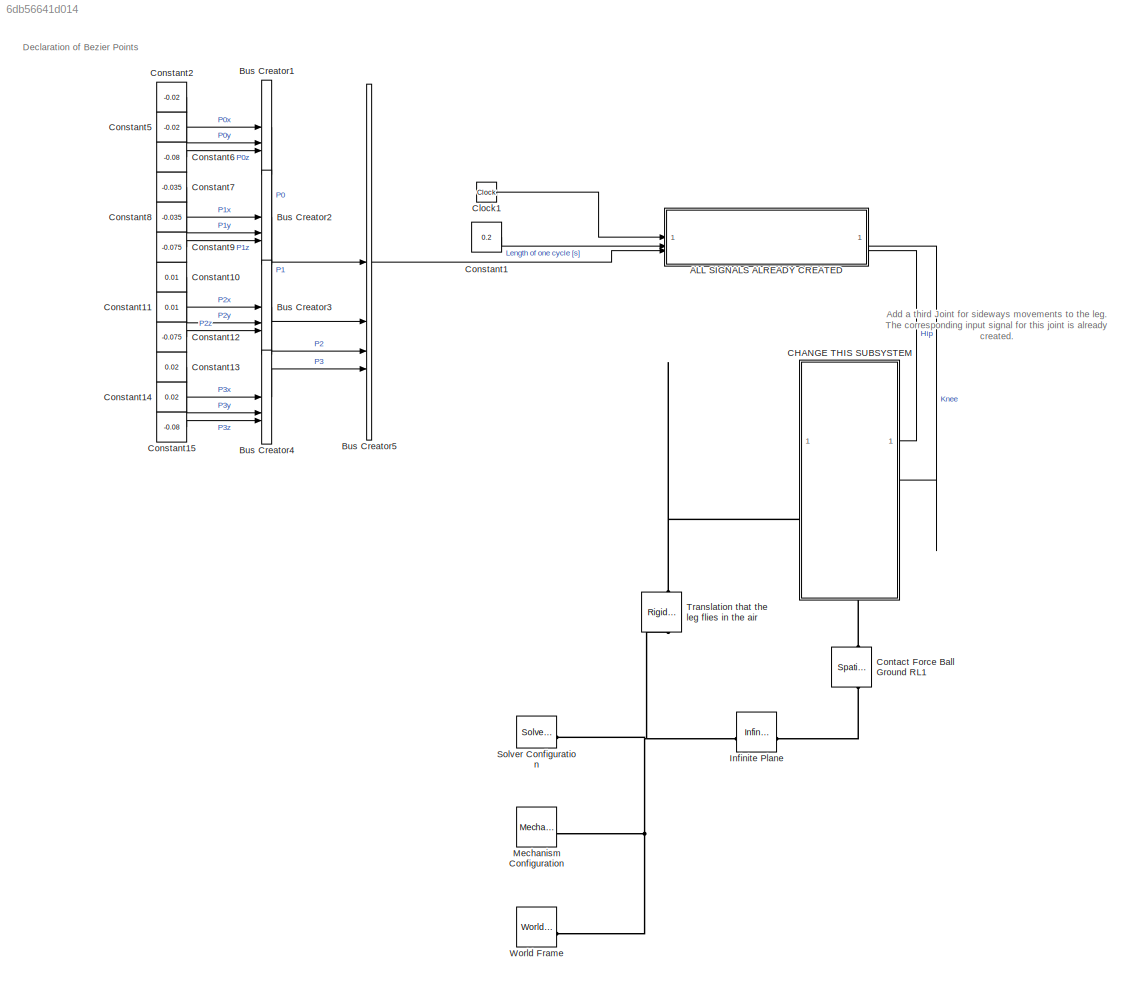
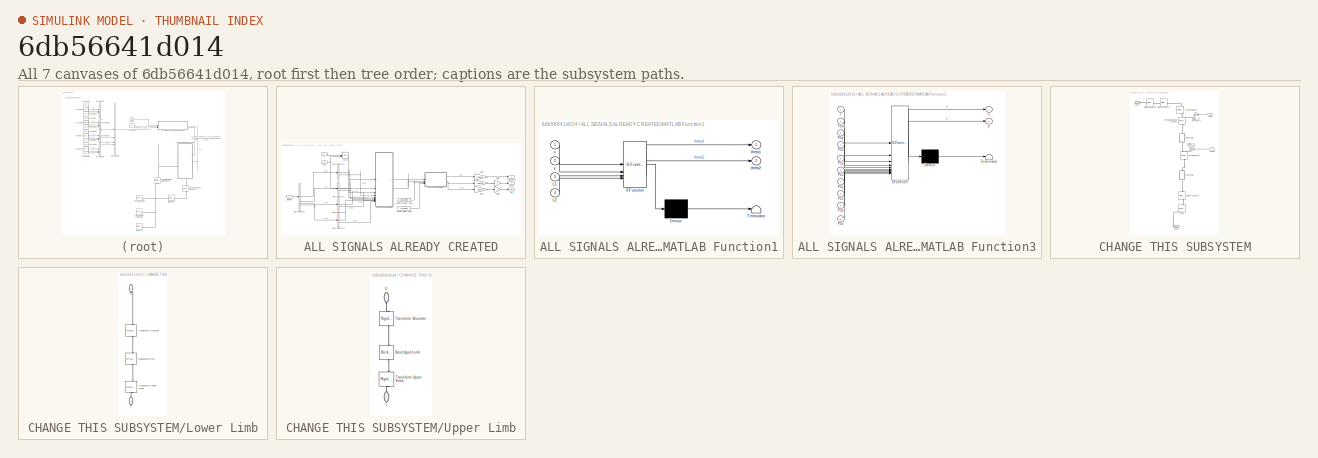
[diagram: thumbnail index - all 7 canvases of the model, root first then tree order]
MODEL slx_6db56641d014
KIND model
CONFIG AbsTol = 1e-3
CONFIG EnableMultiTasking = on
CONFIG FixedStep = auto
CONFIG MaxStep = auto
CONFIG MinStep = auto
CONFIG RelTol = 1e-3
CONFIG SampleTimeConstraint = Unconstrained
CONFIG SolverName = ode23t
CONFIG StartTime = 0.0
CONFIG StopTime = 5
WORKSPACE source: mxarray member
WORKSPACE A = 0.4
WORKSPACE Critical_Velocity = 0.01
WORKSPACE Damping_Factor = 1000
WORKSPACE Dynamic_Friction = 0.5
WORKSPACE Heigth_brick: Simulink.Parameter (value not decoded)
WORKSPACE Heigth_ramp: Simulink.Parameter (value not decoded)
WORKSPACE Length_brick: Simulink.Parameter (value not decoded)
WORKSPACE Length_ramp: Simulink.Parameter (value not decoded)
WORKSPACE Length_torso: Simulink.Parameter (value not decoded)
WORKSPACE Lower_limbs: Simulink.Parameter (value not decoded)
WORKSPACE Static_Friction = 0.7
WORKSPACE Stiffnesscoefficient = 10000
WORKSPACE Transition_Region_Width = 0.02
WORKSPACE Upper_limbs: Simulink.Parameter (value not decoded)
WORKSPACE Width_brick: Simulink.Parameter (value not decoded)
WORKSPACE Width_ramp: Simulink.Parameter (value not decoded)
WORKSPACE Width_torso: Simulink.Parameter (value not decoded)
WORKSPACE f = 1.5
WORKSPACE max_Joint_change = 100
WORKSPACE r_foot: Simulink.Parameter (value not decoded)
WORKSPACE sampleTime: Simulink.Parameter (value not decoded)
WORKSPACE t_leg: Simulink.Parameter (value not decoded)
WORKSPACE theta: Simulink.Parameter (value not decoded)
WORKSPACE transferFunVal: Simulink.Parameter (value not decoded)
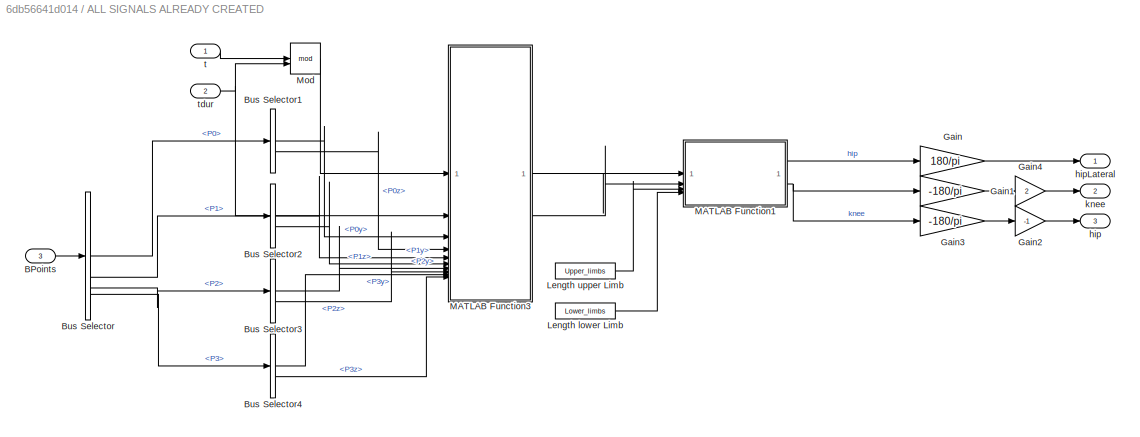
BLOCK [SubSystem] ALL SIGNALS ALREADY CREATED
BLOCK [Inport] ALL SIGNALS ALREADY CREATED/BPoints
  Port = 3
BLOCK [BusSelector] ALL SIGNALS ALREADY CREATED/Bus Selector
  OutputSignals = P0,P1,P2,P3
BLOCK [BusSelector] ALL SIGNALS ALREADY CREATED/Bus Selector1
  OutputSignals = P0y,P0z
BLOCK [BusSelector] ALL SIGNALS ALREADY CREATED/Bus Selector2
  OutputSignals = P1y,P1z
BLOCK [BusSelector] ALL SIGNALS ALREADY CREATED/Bus Selector3
  OutputSignals = P2y,P2z
BLOCK [BusSelector] ALL SIGNALS ALREADY CREATED/Bus Selector4
  OutputSignals = P3y,P3z
BLOCK [Gain] ALL SIGNALS ALREADY CREATED/Gain
  Gain = 180/pi
BLOCK [Gain] ALL SIGNALS ALREADY CREATED/Gain1
  Gain = -180/pi
BLOCK [Gain] ALL SIGNALS ALREADY CREATED/Gain2
  Gain = -1
BLOCK [Gain] ALL SIGNALS ALREADY CREATED/Gain3
  Gain = -180/pi
BLOCK [Gain] ALL SIGNALS ALREADY CREATED/Gain4
  Gain = 2
BLOCK [Constant] ALL SIGNALS ALREADY CREATED/Length lower Limb
  Value = Lower_limbs
BLOCK [Constant] ALL SIGNALS ALREADY CREATED/Length upper Limb
  Value = Upper_limbs
BLOCK [SubSystem] ALL SIGNALS ALREADY CREATED/MATLAB Function1
  ErrorFcn = Stateflow.Translate.translate
  PermitHierarchicalResolution = ExplicitOnly
  SFBlockType = MATLAB Function
  TreatAsAtomicUnit = on
BLOCK [Demux] ALL SIGNALS ALREADY CREATED/MATLAB Function1/ Demux 
  Outputs = 1
BLOCK [S-Function] ALL SIGNALS ALREADY CREATED/MATLAB Function1/ SFunction 
  EnableBusSupport = on
  FunctionName = sf_sfun
  PortCounts = [4 3]
  SFcnIsStateOwnerBlock = off
  SFunctionDeploymentMode = off
  Tag = Stateflow S-Function 20
BLOCK [Terminator] ALL SIGNALS ALREADY CREATED/MATLAB Function1/ Terminator 
BLOCK [Inport] ALL SIGNALS ALREADY CREATED/MATLAB Function1/L1
  Port = 3
BLOCK [Inport] ALL SIGNALS ALREADY CREATED/MATLAB Function1/L2
  Port = 4
BLOCK [Outport] ALL SIGNALS ALREADY CREATED/MATLAB Function1/theta1
BLOCK [Outport] ALL SIGNALS ALREADY CREATED/MATLAB Function1/theta2
  Port = 2
BLOCK [Inport] ALL SIGNALS ALREADY CREATED/MATLAB Function1/x
BLOCK [Inport] ALL SIGNALS ALREADY CREATED/MATLAB Function1/y
  Port = 2
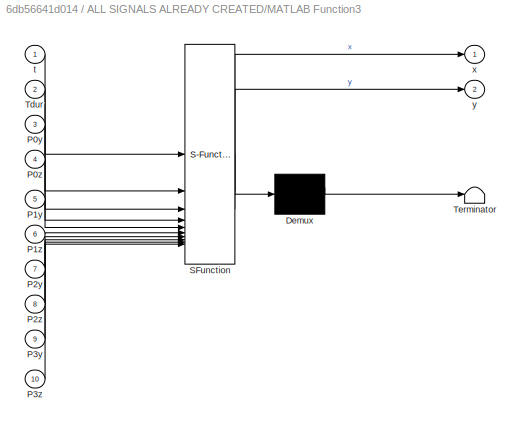
BLOCK [SubSystem] ALL SIGNALS ALREADY CREATED/MATLAB Function3
  ErrorFcn = Stateflow.Translate.translate
  PermitHierarchicalResolution = ExplicitOnly
  SFBlockType = MATLAB Function
  TreatAsAtomicUnit = on
BLOCK [Demux] ALL SIGNALS ALREADY CREATED/MATLAB Function3/ Demux 
  Outputs = 1
BLOCK [S-Function] ALL SIGNALS ALREADY CREATED/MATLAB Function3/ SFunction 
  EnableBusSupport = on
  FunctionName = sf_sfun
  PortCounts = [10 3]
  SFcnIsStateOwnerBlock = off
  SFunctionDeploymentMode = off
  Tag = Stateflow S-Function 22
BLOCK [Terminator] ALL SIGNALS ALREADY CREATED/MATLAB Function3/ Terminator 
BLOCK [Inport] ALL SIGNALS ALREADY CREATED/MATLAB Function3/P0y
  Port = 3
BLOCK [Inport] ALL SIGNALS ALREADY CREATED/MATLAB Function3/P0z
  Port = 4
BLOCK [Inport] ALL SIGNALS ALREADY CREATED/MATLAB Function3/P1y
  Port = 5
BLOCK [Inport] ALL SIGNALS ALREADY CREATED/MATLAB Function3/P1z
  Port = 6
BLOCK [Inport] ALL SIGNALS ALREADY CREATED/MATLAB Function3/P2y
  Port = 7
BLOCK [Inport] ALL SIGNALS ALREADY CREATED/MATLAB Function3/P2z
  Port = 8
BLOCK [Inport] ALL SIGNALS ALREADY CREATED/MATLAB Function3/P3y
  Port = 9
BLOCK [Inport] ALL SIGNALS ALREADY CREATED/MATLAB Function3/P3z
  Port = 10
BLOCK [Inport] ALL SIGNALS ALREADY CREATED/MATLAB Function3/Tdur
  Port = 2
BLOCK [Inport] ALL SIGNALS ALREADY CREATED/MATLAB Function3/t
BLOCK [Outport] ALL SIGNALS ALREADY CREATED/MATLAB Function3/x
BLOCK [Outport] ALL SIGNALS ALREADY CREATED/MATLAB Function3/y
  Port = 2
BLOCK [Math] ALL SIGNALS ALREADY CREATED/Mod
  Operator = mod
BLOCK [Outport] ALL SIGNALS ALREADY CREATED/hip
  Port = 3
BLOCK [Outport] ALL SIGNALS ALREADY CREATED/hipLateral
BLOCK [Outport] ALL SIGNALS ALREADY CREATED/knee
  Port = 2
BLOCK [Inport] ALL SIGNALS ALREADY CREATED/t
BLOCK [Inport] ALL SIGNALS ALREADY CREATED/tdur
  Port = 2
BLOCK [BusCreator] Bus Creator1
  DisplayOption = bar
  InheritFromInputs = on
  Inputs = 3
BLOCK [BusCreator] Bus Creator2
  DisplayOption = bar
  InheritFromInputs = on
  Inputs = 3
BLOCK [BusCreator] Bus Creator3
  DisplayOption = bar
  InheritFromInputs = on
  Inputs = 3
BLOCK [BusCreator] Bus Creator4
  DisplayOption = bar
  InheritFromInputs = on
  Inputs = 3
BLOCK [BusCreator] Bus Creator5
  DisplayOption = bar
  InheritFromInputs = on
  Inputs = 4
BLOCK [SubSystem] CHANGE THIS SUBSYSTEM
  PortSchema = {"entries":[{"content":{"sides":[{"content":{},"type":"ConnectorPlacement.EquallySpacedRectSide","uuid":"4058ee2b-9772-4aa9-ad2c-dc188ae6aecd"},{"content":{"connectorIds":["In1","In2"],"side":"RIGHT"},"type":"ConnectorPlacement.EquallySpacedRectSide","uuid":"c8f5ac60-63ea-4dfe-ad35-3ef8c1bdb1d6"},{"content":{"connectorIds":["LConn1"],"side":"TOP"},"type":"ConnectorPlacement.EquallySpacedRectSide",...<+383ch>
BLOCK [Inport] CHANGE THIS SUBSYSTEM/<Hip>
  NameLocation = top
BLOCK [Inport] CHANGE THIS SUBSYSTEM/<Knee>
  NameLocation = top
  Port = 2
BLOCK [PMIOPort] CHANGE THIS SUBSYSTEM/Conn1
  Side = Left
BLOCK [PMIOPort] CHANGE THIS SUBSYSTEM/Conn2
  Port = 2
  Side = Right
BLOCK [Reference] CHANGE THIS SUBSYSTEM/Foot  REF=sm_lib/Body Elements/Spherical Solid
  NameLocation = right
  SourceBlock = sm_lib/Body Elements/Spherical Solid
  SourceType = Spherical Solid
BLOCK [SubSystem] CHANGE THIS SUBSYSTEM/Lower Limb
  NameLocation = left
BLOCK [Reference] CHANGE THIS SUBSYSTEM/Lower Limb/BaseLowerLimb  REF=sm_lib/Body Elements/Brick Solid
  NameLocation = left
  SourceBlock = sm_lib/Body Elements/Brick Solid
  SourceType = Brick Solid
BLOCK [PMIOPort] CHANGE THIS SUBSYSTEM/Lower Limb/L
  NameLocation = left
  Port = 2
  Side = Right
BLOCK [Reference] CHANGE THIS SUBSYSTEM/Lower Limb/Transform Shoulder  REF=sm_lib/Frames and
Transforms/Rigid
Transform
  NameLocation = left
  SourceBlock = sm_lib/Frames and\nTransforms/Rigid\nTransform
  SourceType = Rigid\nTransform
BLOCK [Reference] CHANGE THIS SUBSYSTEM/Lower Limb/Transform Upper Knee  REF=sm_lib/Frames and
Transforms/Rigid
Transform
  NameLocation = left
  SourceBlock = sm_lib/Frames and\nTransforms/Rigid\nTransform
  SourceType = Rigid\nTransform
BLOCK [PMIOPort] CHANGE THIS SUBSYSTEM/Lower Limb/U
  NameLocation = left
  Side = Left
BLOCK [Reference] CHANGE THIS SUBSYSTEM/Revolute Knee1  REF=sm_lib/Joints/Revolute Joint
  NameLocation = left
  SourceBlock = sm_lib/Joints/Revolute Joint
  SourceType = Revolute Joint
BLOCK [Reference] CHANGE THIS SUBSYSTEM/Revolute Shoulder Forward  REF=sm_lib/Joints/Revolute Joint
  NameLocation = left
  SourceBlock = sm_lib/Joints/Revolute Joint
  SourceType = Revolute Joint
BLOCK [Reference] CHANGE THIS SUBSYSTEM/Rigid Transform  REF=sm_lib/Frames and
Transforms/Rigid
Transform
  SourceBlock = sm_lib/Frames and\nTransforms/Rigid\nTransform
  SourceType = Rigid\nTransform
BLOCK [Reference] CHANGE THIS SUBSYSTEM/Rigid Transform1  REF=sm_lib/Frames and
Transforms/Rigid
Transform
  SourceBlock = sm_lib/Frames and\nTransforms/Rigid\nTransform
  SourceType = Rigid\nTransform
BLOCK [Reference] CHANGE THIS SUBSYSTEM/Rigid Transform4  REF=sm_lib/Frames and
Transforms/Rigid
Transform
  NameLocation = left
  SourceBlock = sm_lib/Frames and\nTransforms/Rigid\nTransform
  SourceType = Rigid\nTransform
BLOCK [Reference] CHANGE THIS SUBSYSTEM/Simulink-PS Converter  REF=nesl_utility/Simulink-PS
Converter
  NameLocation = top
  SourceBlock = nesl_utility/Simulink-PS\nConverter
  SourceType = Simulink-PS\nConverter
BLOCK [Reference] CHANGE THIS SUBSYSTEM/Simulink-PS Converter2  REF=nesl_utility/Simulink-PS
Converter
  NameLocation = top
  SourceBlock = nesl_utility/Simulink-PS\nConverter
  SourceType = Simulink-PS\nConverter
BLOCK [Reference] CHANGE THIS SUBSYSTEM/Transform Pivot1  REF=sm_lib/Frames and
Transforms/Rigid
Transform
  NameLocation = left
  SourceBlock = sm_lib/Frames and\nTransforms/Rigid\nTransform
  SourceType = Rigid\nTransform
BLOCK [SubSystem] CHANGE THIS SUBSYSTEM/Upper Limb
  NameLocation = left
BLOCK [Reference] CHANGE THIS SUBSYSTEM/Upper Limb/BaseUpperLimb  REF=sm_lib/Body Elements/Brick Solid
  NameLocation = left
  SourceBlock = sm_lib/Body Elements/Brick Solid
  SourceType = Brick Solid
BLOCK [PMIOPort] CHANGE THIS SUBSYSTEM/Upper Limb/L
  NameLocation = left
  Port = 2
  Side = Right
BLOCK [Reference] CHANGE THIS SUBSYSTEM/Upper Limb/Transform Shoulder  REF=sm_lib/Frames and
Transforms/Rigid
Transform
  NameLocation = left
  SourceBlock = sm_lib/Frames and\nTransforms/Rigid\nTransform
  SourceType = Rigid\nTransform
BLOCK [Reference] CHANGE THIS SUBSYSTEM/Upper Limb/Transform Upper Knee  REF=sm_lib/Frames and
Transforms/Rigid
Transform
  NameLocation = left
  SourceBlock = sm_lib/Frames and\nTransforms/Rigid\nTransform
  SourceType = Rigid\nTransform
BLOCK [PMIOPort] CHANGE THIS SUBSYSTEM/Upper Limb/U
  NameLocation = left
  Side = Left
BLOCK [Clock] Clock1
BLOCK [Constant] Constant1
  Value = 0.2
BLOCK [Constant] Constant10
  Value = 0.01
BLOCK [Constant] Constant11
  Value = 0.01
BLOCK [Constant] Constant12
  Value = -0.075
BLOCK [Constant] Constant13
  Value = 0.02
BLOCK [Constant] Constant14
  Value = 0.02
BLOCK [Constant] Constant15
  Value = -0.08
BLOCK [Constant] Constant2
  Value = -0.02
BLOCK [Constant] Constant5
  Value = -0.02
BLOCK [Constant] Constant6
  Value = -0.08
BLOCK [Constant] Constant7
  Value = -0.035
BLOCK [Constant] Constant8
  Value = -0.035
BLOCK [Constant] Constant9
  Value = -0.075
BLOCK [Reference] Contact Force Ball Ground RL1  REF=sm_lib/Forces and
Torques/Spatial
Contact Force
  NameLocation = left
  SourceBlock = sm_lib/Forces and\nTorques/Spatial\nContact Force
  SourceType = Spatial\nContact Force
BLOCK [Reference] Infinite Plane  REF=sm_lib/Curves and Surfaces/Infinite Plane
  SourceBlock = sm_lib/Curves and Surfaces/Infinite Plane
  SourceType = Infinite Plane
BLOCK [Reference] Mechanism Configuration  REF=sm_lib/Utilities/Mechanism
Configuration
  SourceBlock = sm_lib/Utilities/Mechanism\nConfiguration
  SourceType = Mechanism\nConfiguration
BLOCK [Reference] Solver Configuration  REF=nesl_utility/Solver
Configuration
  SourceBlock = nesl_utility/Solver\nConfiguration
  SourceType = Solver\nConfiguration
BLOCK [Reference] Translation that the leg flies in the air  REF=sm_lib/Frames and
Transforms/Rigid
Transform
  SourceBlock = sm_lib/Frames and\nTransforms/Rigid\nTransform
  SourceType = Rigid\nTransform
BLOCK [Reference] World Frame  REF=sm_lib/Frames and
Transforms/World Frame
  SourceBlock = sm_lib/Frames and\nTransforms/World Frame
  SourceType = World Frame
ANNOTATION (root): Add a third Joint for sideways movements to the leg. The corresponding input signal for this joint is already created.
ANNOTATION (root): Declaration of Bezier Points
LINE ALL SIGNALS ALREADY CREATED/BPoints:1 -> ALL SIGNALS ALREADY CREATED/Bus Selector:1
LINE ALL SIGNALS ALREADY CREATED/Bus Selector1:1 -> ALL SIGNALS ALREADY CREATED/MATLAB Function3:3
LINE ALL SIGNALS ALREADY CREATED/Bus Selector1:2 -> ALL SIGNALS ALREADY CREATED/MATLAB Function3:4
LINE ALL SIGNALS ALREADY CREATED/Bus Selector2:1 -> ALL SIGNALS ALREADY CREATED/MATLAB Function3:5
LINE ALL SIGNALS ALREADY CREATED/Bus Selector2:2 -> ALL SIGNALS ALREADY CREATED/MATLAB Function3:6
LINE ALL SIGNALS ALREADY CREATED/Bus Selector3:1 -> ALL SIGNALS ALREADY CREATED/MATLAB Function3:7
LINE ALL SIGNALS ALREADY CREATED/Bus Selector3:2 -> ALL SIGNALS ALREADY CREATED/MATLAB Function3:8
LINE ALL SIGNALS ALREADY CREATED/Bus Selector4:1 -> ALL SIGNALS ALREADY CREATED/MATLAB Function3:9
LINE ALL SIGNALS ALREADY CREATED/Bus Selector4:2 -> ALL SIGNALS ALREADY CREATED/MATLAB Function3:10
LINE ALL SIGNALS ALREADY CREATED/Bus Selector:1 -> ALL SIGNALS ALREADY CREATED/Bus Selector1:1
LINE ALL SIGNALS ALREADY CREATED/Bus Selector:2 -> ALL SIGNALS ALREADY CREATED/Bus Selector2:1
LINE ALL SIGNALS ALREADY CREATED/Bus Selector:3 -> ALL SIGNALS ALREADY CREATED/Bus Selector3:1
LINE ALL SIGNALS ALREADY CREATED/Bus Selector:4 -> ALL SIGNALS ALREADY CREATED/Bus Selector4:1
LINE ALL SIGNALS ALREADY CREATED/Gain1:1 -> ALL SIGNALS ALREADY CREATED/Gain4:1
LINE ALL SIGNALS ALREADY CREATED/Gain2:1 -> ALL SIGNALS ALREADY CREATED/hip:1
LINE ALL SIGNALS ALREADY CREATED/Gain3:1 -> ALL SIGNALS ALREADY CREATED/Gain2:1
LINE ALL SIGNALS ALREADY CREATED/Gain4:1 -> ALL SIGNALS ALREADY CREATED/knee:1
LINE ALL SIGNALS ALREADY CREATED/Gain:1 -> ALL SIGNALS ALREADY CREATED/hipLateral:1
LINE ALL SIGNALS ALREADY CREATED/Length lower Limb:1 -> ALL SIGNALS ALREADY CREATED/MATLAB Function1:4
LINE ALL SIGNALS ALREADY CREATED/Length upper Limb:1 -> ALL SIGNALS ALREADY CREATED/MATLAB Function1:3
LINE ALL SIGNALS ALREADY CREATED/MATLAB Function1:1 -> ALL SIGNALS ALREADY CREATED/Gain:1
NET ALL SIGNALS ALREADY CREATED/MATLAB Function1:2 -> ALL SIGNALS ALREADY CREATED/Gain1:1, ALL SIGNALS ALREADY CREATED/Gain3:1
LINE ALL SIGNALS ALREADY CREATED/MATLAB Function3:1 -> ALL SIGNALS ALREADY CREATED/MATLAB Function1:1
LINE ALL SIGNALS ALREADY CREATED/MATLAB Function3:2 -> ALL SIGNALS ALREADY CREATED/MATLAB Function1:2
LINE ALL SIGNALS ALREADY CREATED/Mod:1 -> ALL SIGNALS ALREADY CREATED/MATLAB Function3:1
LINE ALL SIGNALS ALREADY CREATED/t:1 -> ALL SIGNALS ALREADY CREATED/Mod:1
NET ALL SIGNALS ALREADY CREATED/tdur:1 -> ALL SIGNALS ALREADY CREATED/MATLAB Function3:2, ALL SIGNALS ALREADY CREATED/Mod:2
LINE ALL SIGNALS ALREADY CREATED:2 -> CHANGE THIS SUBSYSTEM:2
LINE ALL SIGNALS ALREADY CREATED:3 -> CHANGE THIS SUBSYSTEM:1
LINE Bus Creator1:1 -> Bus Creator5:1
LINE Bus Creator2:1 -> Bus Creator5:2
LINE Bus Creator3:1 -> Bus Creator5:3
LINE Bus Creator4:1 -> Bus Creator5:4
LINE Bus Creator5:1 -> ALL SIGNALS ALREADY CREATED:3
LINE CHANGE THIS SUBSYSTEM/<Hip>:1 -> CHANGE THIS SUBSYSTEM/Simulink-PS Converter2:1
LINE CHANGE THIS SUBSYSTEM/<Knee>:1 -> CHANGE THIS SUBSYSTEM/Simulink-PS Converter:1
LINE Clock1:1 -> ALL SIGNALS ALREADY CREATED:1
LINE Constant10:1 -> Bus Creator3:1
LINE Constant11:1 -> Bus Creator3:2
LINE Constant12:1 -> Bus Creator3:3
LINE Constant13:1 -> Bus Creator4:1
LINE Constant14:1 -> Bus Creator4:2
LINE Constant15:1 -> Bus Creator4:3
LINE Constant1:1 -> ALL SIGNALS ALREADY CREATED:2
LINE Constant2:1 -> Bus Creator1:1
LINE Constant5:1 -> Bus Creator1:2
LINE Constant6:1 -> Bus Creator1:3
LINE Constant7:1 -> Bus Creator2:1
LINE Constant8:1 -> Bus Creator2:2
LINE Constant9:1 -> Bus Creator2:3
PLINE CHANGE THIS SUBSYSTEM/Conn1:RConn1 -- CHANGE THIS SUBSYSTEM/Rigid Transform1:LConn1
PLINE CHANGE THIS SUBSYSTEM/Conn2:RConn1 -- CHANGE THIS SUBSYSTEM/Foot:LConn1
PLINE CHANGE THIS SUBSYSTEM/Foot:RConn1 -- CHANGE THIS SUBSYSTEM/Rigid Transform4:RConn1
PLINE CHANGE THIS SUBSYSTEM/Lower Limb/BaseLowerLimb:LConn1 -- CHANGE THIS SUBSYSTEM/Lower Limb/Transform Shoulder:LConn1
PLINE CHANGE THIS SUBSYSTEM/Lower Limb/BaseLowerLimb:RConn1 -- CHANGE THIS SUBSYSTEM/Lower Limb/Transform Upper Knee:LConn1
PLINE CHANGE THIS SUBSYSTEM/Lower Limb/L:RConn1 -- CHANGE THIS SUBSYSTEM/Lower Limb/Transform Upper Knee:RConn1
PLINE CHANGE THIS SUBSYSTEM/Lower Limb/Transform Shoulder:RConn1 -- CHANGE THIS SUBSYSTEM/Lower Limb/U:RConn1
PLINE CHANGE THIS SUBSYSTEM/Lower Limb:LConn1 -- CHANGE THIS SUBSYSTEM/Revolute Knee1:RConn1
PLINE CHANGE THIS SUBSYSTEM/Lower Limb:RConn1 -- CHANGE THIS SUBSYSTEM/Rigid Transform4:LConn1
PLINE CHANGE THIS SUBSYSTEM/Revolute Knee1:LConn1 -- CHANGE THIS SUBSYSTEM/Upper Limb:RConn1
PLINE CHANGE THIS SUBSYSTEM/Revolute Knee1:LConn2 -- CHANGE THIS SUBSYSTEM/Simulink-PS Converter:RConn1
PLINE CHANGE THIS SUBSYSTEM/Revolute Shoulder Forward:LConn1 -- CHANGE THIS SUBSYSTEM/Transform Pivot1:RConn1
PLINE CHANGE THIS SUBSYSTEM/Revolute Shoulder Forward:LConn2 -- CHANGE THIS SUBSYSTEM/Simulink-PS Converter2:RConn1
PLINE CHANGE THIS SUBSYSTEM/Revolute Shoulder Forward:RConn1 -- CHANGE THIS SUBSYSTEM/Upper Limb:LConn1
PLINE CHANGE THIS SUBSYSTEM/Rigid Transform1:RConn1 -- CHANGE THIS SUBSYSTEM/Rigid Transform:LConn1
PLINE CHANGE THIS SUBSYSTEM/Rigid Transform:RConn1 -- CHANGE THIS SUBSYSTEM/Transform Pivot1:LConn1
PLINE CHANGE THIS SUBSYSTEM/Upper Limb/BaseUpperLimb:LConn1 -- CHANGE THIS SUBSYSTEM/Upper Limb/Transform Shoulder:LConn1
PLINE CHANGE THIS SUBSYSTEM/Upper Limb/BaseUpperLimb:RConn1 -- CHANGE THIS SUBSYSTEM/Upper Limb/Transform Upper Knee:LConn1
PLINE CHANGE THIS SUBSYSTEM/Upper Limb/L:RConn1 -- CHANGE THIS SUBSYSTEM/Upper Limb/Transform Upper Knee:RConn1
PLINE CHANGE THIS SUBSYSTEM/Upper Limb/Transform Shoulder:RConn1 -- CHANGE THIS SUBSYSTEM/Upper Limb/U:RConn1
PLINE CHANGE THIS SUBSYSTEM:LConn1 -- Translation that the leg flies in the air:RConn1
PLINE CHANGE THIS SUBSYSTEM:RConn1 -- Contact Force Ball Ground RL1:LConn1
PLINE Contact Force Ball Ground RL1:RConn1 -- Infinite Plane:RConn1
PNET net1: Infinite Plane:LConn1 -- Mechanism Configuration:RConn1 -- Solver Configuration:RConn1 -- Translation that the leg flies in the air:LConn1 -- World Frame:RConn1
note: NET lines group one-source signal fan-out (src -> all destinations, sorted); 1:1 wires keep LINE; PNET lines group multi-terminal physical nets as a canonical sorted terminal list (undirected conserving connections); 2-terminal nets keep the pairwise PLINE form
CHART ALL SIGNALS ALREADY CREATED/MATLAB Function1 states=1 transitions=1
  STATE_LABEL 'eML_blk_kernel()'
  STATE_LABEL 'SCRIPT:\nfunction [theta1, theta2] = angSide(x,y,L1,L2)\ntheta1 = atan(-x/y);\nif theta1 ~= 0\n    d = x / (2*sin(theta1));\n    theta2 = acos(d/L1);\nelse\n    d = -y/2;\n    theta2 = acos(d/L1);\nend\nend'
CHART ALL SIGNALS ALREADY CREATED/MATLAB Function3 states=1 transitions=1
  STATE_LABEL 'eML_blk_kernel()'
  STATE_LABEL 'SCRIPT:\nfunction [x, y] = bez_plane_TrajV2(t,Tdur,P0y,P0z,P1y,P1z,P2y,P2z,P3y,P3z)\nt_swing = Tdur/4;\nt_support = Tdur*3/4;\n\nP0 = [P0y, P0z];\nP1 = [P1y, P1z];\nP2 = [P2y, P2z];\nP3 = [P3y, P3z];\nP_ini = (P0 + P3)/2;\n\nif Tdur == 0\n    x = -P_ini(1);\n    y = P_ini(2);\n\nelseif t<=t_support/2\n    x = -1*(P_ini(1)+(P3(1)-P0(1))/t_support*(t));\n    y = P_ini(2);\n\nelseif t<=t_support/2+t_swing\n    t_ef = (t...<+327ch>'
CHART  states=0 transitions=0
CHART  states=0 transitions=0
